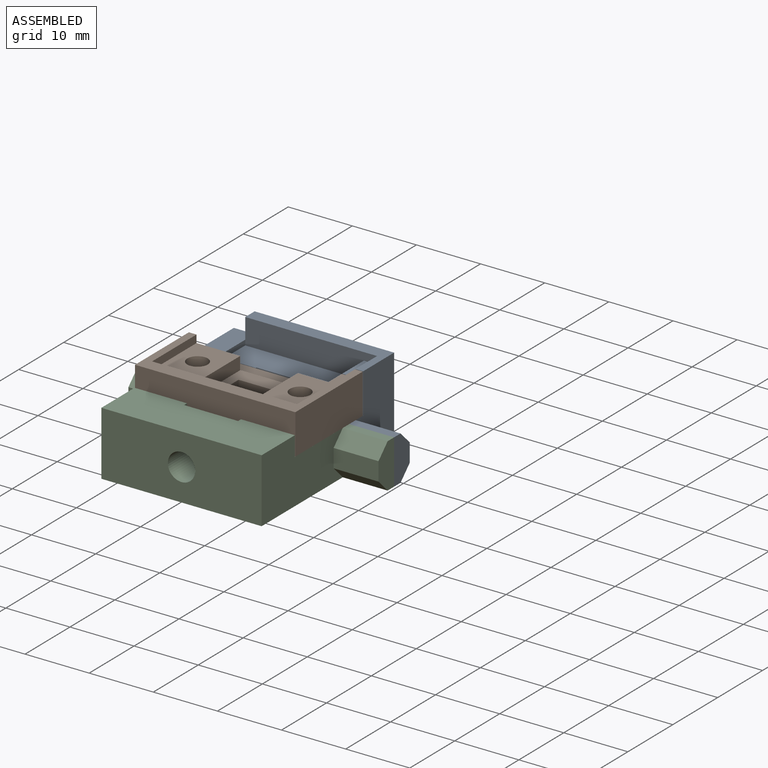
[diagram: assembled view]
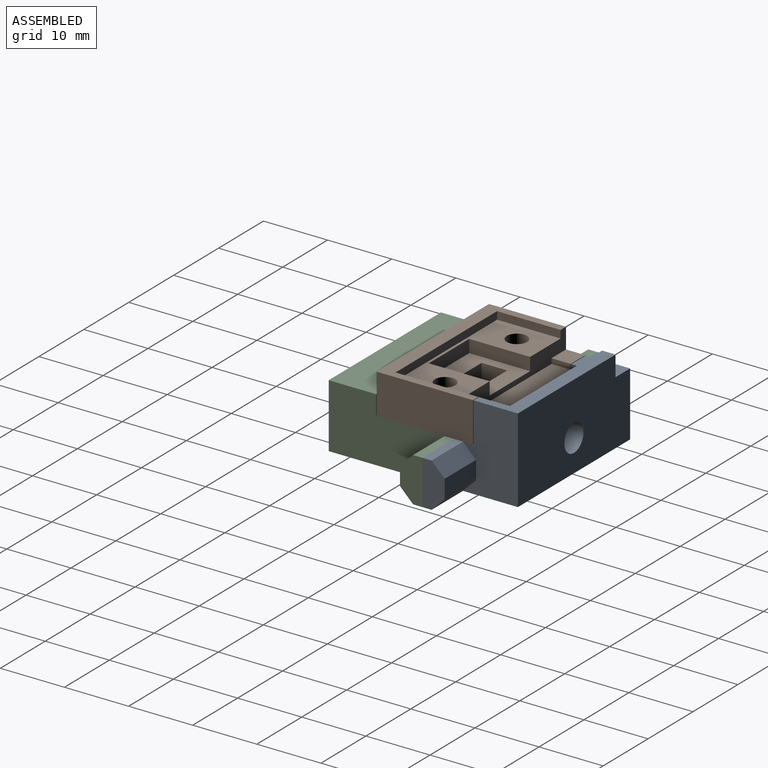
[diagram: assembled view, second angle]
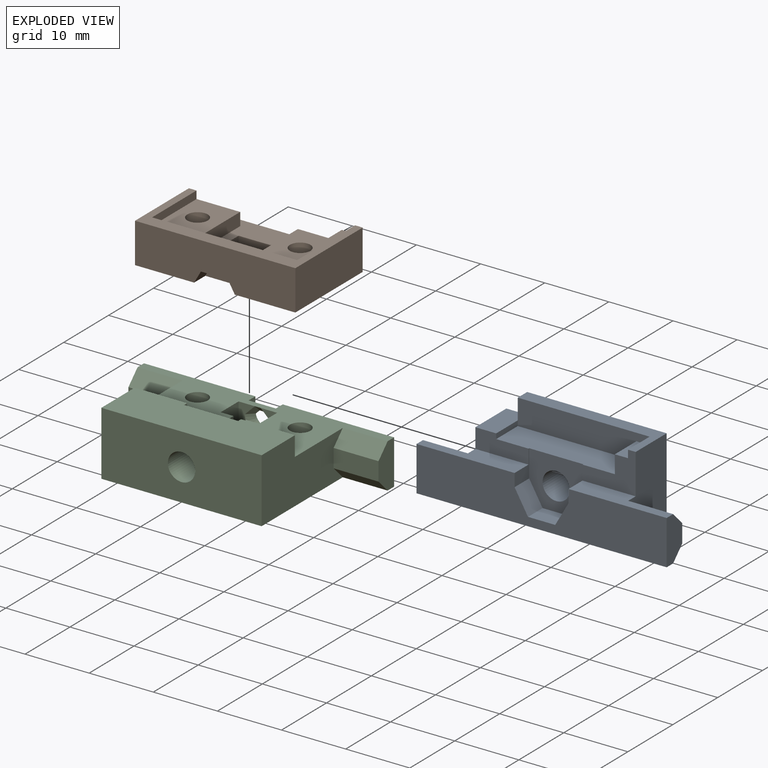
[diagram: exploded view]
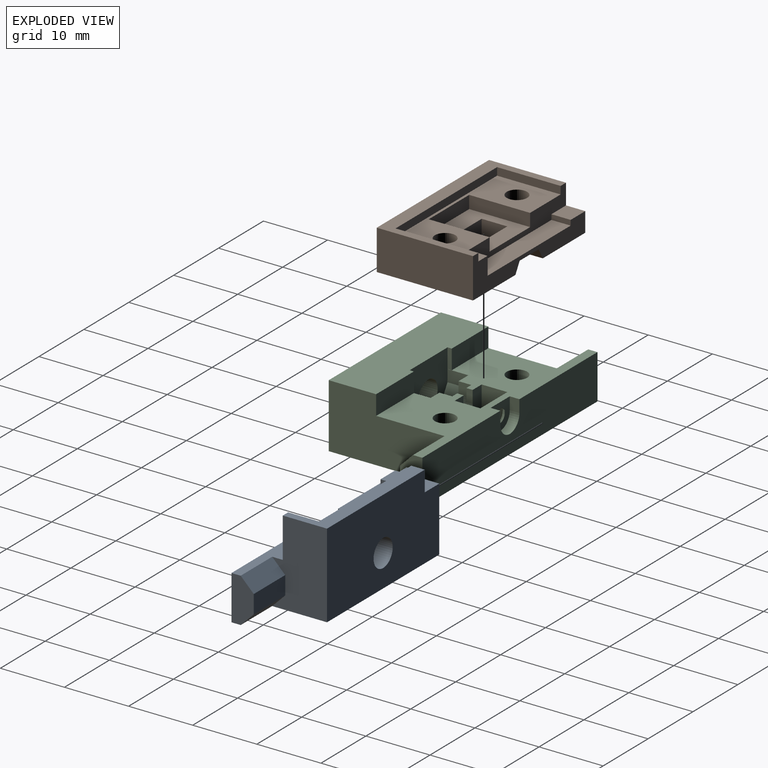
[diagram: exploded view, second angle]
ASSEMBLY  parts=3 mates=2
PART A: 33 faces, bbox 39x10x13.2 mm
  f0: plane 13.2x8.56mm, normal (1,0,0), area 92.6mm2, adj f2,f5,f7,f16,f22,f30,f31,f32
  f1: plane 15.29x3.1mm, normal (0,0,1), area 35.8mm2, adj f6,f8,f9,f11,f13,f27
  f2: plane 15.29x3.1mm, normal (0,0,1), area 35.8mm2, adj f0,f4,f8,f15,f16,f30
  f3: plane 4.81x0.8mm, normal (1,0,0), area 3.8mm2, adj f10,f11,f12,f21
  f4: plane 6.95x3.47mm, normal (1,0,0), area 20mm2, adj f2,f7,f8,f30,f31,f32
  f5: plane 25x13.2mm, normal (0,1,0), area 305.4mm2, adj f0,f6,f7,f10,f20,f22,f26
  f6: plane 10x8.56mm, normal (-1,0,0), area 70.5mm2, adj f1,f5,f7,f10,f11,f27,f28,f29
  f7: plane 39x10mm, normal (0,0,-1), area 270.1mm2, adj f0,f4,f5,f6,f8,f9,f29,f32
  f8: plane 39x6.95mm, normal (0,-1,0), area 231.2mm2, adj f1,f2,f4,f7,f9,f13,f15,f23
  f9: plane 6.95x3.47mm, normal (-1,0,0), area 20mm2, adj f1,f7,f8,f27,f28,f29
  f10: plane 6.9x3.25mm, normal (0,0,1), area 22.4mm2, adj f3,f5,f6,f11,f20
  f11: plane 8.29x3.05mm, normal (0,-1,0), area 21.3mm2, adj f1,f3,f6,f10,f12,f13
  f12: plane 18.5x4.81mm, normal (0,0,1), area 87.7mm2, adj f3,f11,f13,f14,f15,f16,f17,f21
  f13: plane 4.25x3.25mm, normal (1,0,0), area 6.8mm2, adj f1,f8,f11,f12,f14,f24
  f14: plane 8.43x7.88mm, normal (0,-1,0), area 44.6mm2, adj f12,f13,f15,f23,f24,f25,f26
  f15: plane 4.25x3.25mm, normal (-1,0,0), area 6.8mm2, adj f2,f8,f12,f14,f16,f23
  f16: plane 8.29x6.25mm, normal (0,-1,0), area 29.2mm2, adj f0,f2,f12,f15,f17,f18,f19,f22
  f17: plane 4.81x2.8mm, normal (-1,0,0), area 13.5mm2, adj f12,f16,f18,f21
  f18: plane 4.81x2.06mm, normal (0,0,1), area 9.9mm2, adj f16,f17,f19,f21
  f19: plane 4.81x1.2mm, normal (-1,0,0), area 5.8mm2, adj f16,f18,f21,f22
  f20: plane 3.2x2.09mm, normal (-1,0,0), area 6.7mm2, adj f5,f10,f21,f22
  f21: plane 20.56x4mm, normal (0,-1,0), area 76.5mm2, adj f3,f12,f17,f18,f19,f20,f22
  f22: plane 21.75x6.9mm, normal (0,0,1), area 51.2mm2, adj f0,f5,f16,f19,f20,f21
  f23: plane 3.62x3.25mm, normal (-0.87,0,0.5), area 13.6mm2, adj f8,f14,f15,f25
  f24: plane 3.62x3.25mm, normal (0.87,0,0.5), area 13.6mm2, adj f8,f13,f14,f25
  f25: plane 4.24x3.25mm, normal (0,0,1), area 13.8mm2, adj f8,f14,f23,f24
  f26: cylinder r=2.12mm len=6.75mm, axis (0,-1,0), area 90.1mm2, adj f5,f14
  f27: plane 7x2.04mm, normal (0,0.71,0.71), area 20.1mm2, adj f1,f6,f9,f28
  f28: plane 7x2.88mm, normal (0,1,0), area 20.1mm2, adj f6,f9,f27,f29
  f29: plane 7x2.04mm, normal (0,0.71,-0.71), area 20.1mm2, adj f6,f7,f9,f28
  f30: plane 7x2.04mm, normal (0,0.71,0.71), area 20.1mm2, adj f0,f2,f4,f31
  f31: plane 7x2.88mm, normal (0,1,0), area 20.1mm2, adj f0,f4,f30,f32
  f32: plane 7x2.04mm, normal (0,0.71,-0.71), area 20.1mm2, adj f0,f4,f7,f31
PART B: 33 faces, bbox 25x15x6.3 mm
  f0: plane 25x15mm, normal (0,0,-1), area 300.7mm2, adj f3,f4,f5,f6,f7,f8,f9,f10
  f1: plane 3.25x3mm, normal (0,0,1), area 9.8mm2, adj f4,f8,f14,f15
  f2: plane 18.5x3mm, normal (0,0,1), area 55.5mm2, adj f4,f14,f15,f16
  f3: plane 4x3.05mm, normal (-1,0,0), area 12.2mm2, adj f0,f5,f6,f13
  f4: plane 25x6.25mm, normal (0,1,0), area 61mm2, adj f0,f1,f2,f8,f9,f15,f16,f17
  f5: plane 6x3.05mm, normal (0,1,0), area 18.3mm2, adj f0,f3,f7,f13
  f6: plane 6x3.05mm, normal (0,-1,0), area 18.3mm2, adj f0,f3,f7,f13
  f7: plane 4x3.05mm, normal (1,0,0), area 12.2mm2, adj f0,f5,f6,f13
  f8: plane 15x6.25mm, normal (-1,0,0), area 84.2mm2, adj f0,f1,f4,f10,f14,f21
  f9: plane 15x6.25mm, normal (1,0,0), area 93.8mm2, adj f0,f4,f10,f21
  f10: plane 25x6.25mm, normal (0,-1,0), area 146.5mm2, adj f0,f8,f9,f21,f30,f31,f32
  f11: cylinder r=1.6mm len=5.05mm, axis (0,0,-1), area 50.8mm2, adj f0,f17
  f12: cylinder r=1.6mm len=5.05mm, axis (0,0,-1), area 50.8mm2, adj f0,f17
  f13: plane 9.5x9mm, normal (0,0,1), area 61.5mm2, adj f3,f5,f6,f7,f14,f18,f19,f20
  f14: plane 21.75x4mm, normal (0,1,0), area 41.7mm2, adj f1,f2,f8,f13,f15,f16,f17,f18
  f15: plane 3x0.8mm, normal (1,0,0), area 2.4mm2, adj f1,f2,f4,f14
  f16: plane 3x2.8mm, normal (-1,0,0), area 8.4mm2, adj f2,f4,f14,f17
  f17: plane 22.61x12.91mm, normal (0,0,1), area 128.6mm2, adj f4,f11,f12,f14,f16,f18,f19,f20
  f18: plane 9.5x2mm, normal (-1,0,0), area 19mm2, adj f13,f14,f17,f19
  f19: plane 9x2mm, normal (0,1,0), area 18mm2, adj f13,f17,f18,f20
  f20: plane 9.5x2mm, normal (1,0,0), area 19mm2, adj f13,f14,f17,f19
  f21: plane 25x15mm, normal (0,0,1), area 79.5mm2, adj f4,f8,f9,f10,f14,f22,f23,f24
  f22: plane 12.91x1.2mm, normal (-1,0,0), area 15.5mm2, adj f4,f17,f21,f23
  f23: plane 22.61x1.2mm, normal (0,1,0), area 27.1mm2, adj f17,f21,f22,f24
  f24: plane 9.91x1.2mm, normal (1,0,0), area 11.9mm2, adj f14,f17,f21,f23
  f25: plane 6.1x1.64mm, normal (0,1,0), area 8.4mm2, adj f0,f26,f27,f28
  f26: plane 3x1.64mm, normal (-0.87,0,-0.5), area 5.7mm2, adj f0,f4,f25,f28
  f27: plane 3x1.64mm, normal (0.87,0,-0.5), area 5.7mm2, adj f0,f4,f25,f28
  f28: plane 4.21x3mm, normal (0,0,-1), area 12.6mm2, adj f4,f25,f26,f27
  f29: plane 6.34x1.85mm, normal (0,-1,0), area 9.7mm2, adj f0,f30,f31,f32
  f30: plane 4.21x2.5mm, normal (0,0,-1), area 10.5mm2, adj f10,f29,f31,f32
  f31: plane 2.5x1.85mm, normal (0.87,0,-0.5), area 5.3mm2, adj f0,f10,f29,f30
  f32: plane 2.5x1.85mm, normal (-0.87,0,-0.5), area 5.3mm2, adj f0,f10,f29,f30
PART C: 50 faces, bbox 39x19.5x10 mm
  f0: plane 6x5.95mm, normal (0,-1,0), area 24mm2, adj f1,f37,f38,f39,f44,f45,f47,f48
  f1: plane 39x12.75mm, normal (0,0,1), area 243.8mm2, adj f0,f2,f3,f4,f5,f6,f7,f8
  f2: plane 4.25x4.07mm, normal (0,-1,0), area 9.9mm2, adj f1,f30,f31,f32,f33,f34,f35
  f3: plane 8.41x5.42mm, normal (0,-1,0), area 22.7mm2, adj f1,f22,f26,f27,f28,f29,f30,f31
  f4: plane 8.48x8.43mm, normal (0,1,0), area 49.6mm2, adj f1,f20,f22,f23,f25,f26,f27,f28
  f5: plane 18.06x10mm, normal (1,0,0), area 138.1mm2, adj f1,f10,f13,f17,f18,f19,f20,f21
  f6: plane 6.95x3.47mm, normal (1,0,0), area 20mm2, adj f1,f7,f13,f17,f18,f19
  f7: plane 39x6.95mm, normal (0,1,0), area 255.6mm2, adj f1,f6,f8,f13,f41,f42,f43
  f8: plane 6.95x3.47mm, normal (-1,0,0), area 20mm2, adj f1,f7,f13,f14,f15,f16
  f9: plane 18.06x10mm, normal (-1,0,0), area 138.1mm2, adj f1,f10,f13,f14,f15,f16,f20,f24
  f10: plane 25x10mm, normal (0,-1,0), area 235.8mm2, adj f5,f9,f13,f20,f25
  f11: cylinder r=1.6mm len=6.95mm, axis (0,0,-1), area 69.9mm2, adj f1,f13
  f12: cylinder r=1.6mm len=6.95mm, axis (0,0,-1), area 69.9mm2, adj f1,f13
  f13: plane 39x19.5mm, normal (0,0,-1), area 491.6mm2, adj f5,f6,f7,f8,f9,f10,f11,f12
  f14: plane 7x2.04mm, normal (0,-0.71,-0.71), area 20.1mm2, adj f8,f9,f13,f16
  f15: plane 7x2.04mm, normal (0,-0.71,0.71), area 20.1mm2, adj f1,f8,f9,f16
  f16: plane 7x2.88mm, normal (0,-1,0), area 20.1mm2, adj f8,f9,f14,f15
  f17: plane 7x2.04mm, normal (0,-0.71,-0.71), area 20.1mm2, adj f5,f6,f13,f19
  f18: plane 7x2.04mm, normal (0,-0.71,0.71), area 20.1mm2, adj f1,f5,f6,f19
  f19: plane 7x2.88mm, normal (0,-1,0), area 20.1mm2, adj f5,f6,f17,f18
  f20: plane 25x7.4mm, normal (0,0,1), area 179.5mm2, adj f4,f5,f9,f10,f21,f22,f23,f24
  f21: plane 8.4x3.05mm, normal (0,1,0), area 25.6mm2, adj f1,f5,f20,f22
  f22: plane 4.85x3.25mm, normal (-1,0,0), area 7.8mm2, adj f1,f3,f4,f20,f21,f27
  f23: plane 3.05x0.65mm, normal (1,0,0), area 2mm2, adj f1,f4,f20,f24
  f24: plane 8.17x3.05mm, normal (0,1,0), area 24.9mm2, adj f1,f9,f20,f23
  f25: cylinder r=2.12mm len=6.75mm, axis (0,1,0), area 90.1mm2, adj f4,f10
  f26: plane 3.25x1.85mm, normal (1,0,0.01), area 6mm2, adj f1,f3,f4,f29
  f27: plane 3.62x3.25mm, normal (-0.87,0,0.5), area 13.6mm2, adj f3,f4,f22,f28
  f28: plane 4.24x3.25mm, normal (0,0,1), area 13.8mm2, adj f3,f4,f27,f29
  f29: plane 3.58x3.25mm, normal (0.87,0,0.5), area 13.4mm2, adj f3,f4,f26,f28
  f30: plane 2x1.95mm, normal (-1,0,0), area 3.9mm2, adj f1,f2,f3,f31
  f31: cylinder r=2.12mm len=4.25mm, axis (0,-1,0), area 13.4mm2, adj f2,f3,f30,f32
  f32: plane 2x1.95mm, normal (1,0,0), area 3.9mm2, adj f1,f2,f3,f31
  f33: cylinder r=1mm len=2mm, axis (0,-1,0), area 3.1mm2, adj f2,f34,f35,f36
  f34: plane 1.95x1mm, normal (-1,0,0), area 1.9mm2, adj f1,f2,f33,f36
  f35: plane 1.95x1mm, normal (1,0,0), area 1.9mm2, adj f1,f2,f33,f36
  f36: plane 6x5.95mm, normal (0,1,0), area 30.2mm2, adj f1,f33,f34,f35,f37,f38,f39
  f37: plane 5.95x4mm, normal (-1,0,0), area 23.8mm2, adj f0,f1,f36,f39
  f38: plane 5.95x4mm, normal (1,0,0), area 23.8mm2, adj f0,f1,f36,f39
  f39: plane 6x4mm, normal (0,0,1), area 24mm2, adj f0,f36,f37,f38
  f40: plane 4.25x4.07mm, normal (0,1,0), area 12.1mm2, adj f1,f41,f42,f43,f44,f45,f46,f47
  f41: plane 1.95x1.51mm, normal (-1,0,0), area 2.9mm2, adj f1,f7,f40,f42
  f42: cylinder r=2.12mm len=4.25mm, axis (0,1,0), area 10.1mm2, adj f7,f40,f41,f43
  f43: plane 1.95x1.51mm, normal (1,0,0), area 2.9mm2, adj f1,f7,f40,f42
  f44: plane 1x0.99mm, normal (-0.7,-0.71,0), area 0.6mm2, adj f0,f40,f45,f49
  f45: bspline ~1.59x1.53mm, area 1.8mm2, adj f0,f40,f44,f46
  f46: plane 0.99x0.95mm, normal (0,-0.69,-0.72), area 1.2mm2, adj f1,f40,f45,f47
  f47: bspline ~1.59x1.53mm, area 1.8mm2, adj f0,f40,f46,f48
  f48: plane 1x0.99mm, normal (0.7,-0.71,0), area 0.6mm2, adj f0,f40,f47,f49
  f49: cone r=1mm half-angle=45.4deg, axis (0,-1,0), area 6.6mm2, adj f0,f40,f44,f48
PLACE A t=(-63.2,-36.99,17.87)mm
PLACE B t=(-63.2,-59.83,24.82)mm
PLACE C t=(-63.2,-82.87,17.87)mm
MATE fastened B.f11 <-> C.f12  axis (0,0,-1) through (39.02,52.66,24.82)mm
MATE fastened A.f4 <-> C.f6  axis (1,0,0) through (50.52,57.16,21.34)mm
